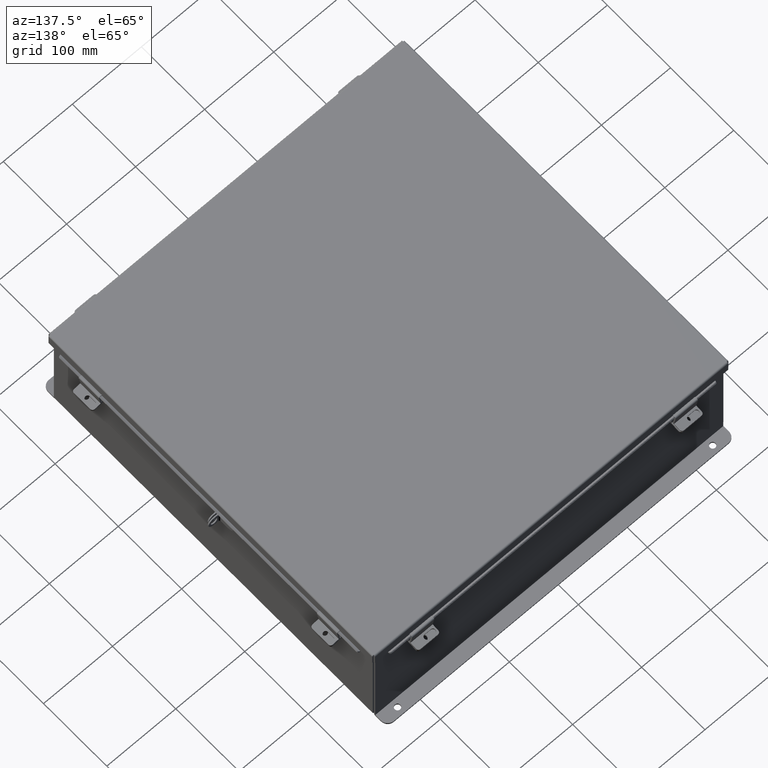
[diagram: clean part render]
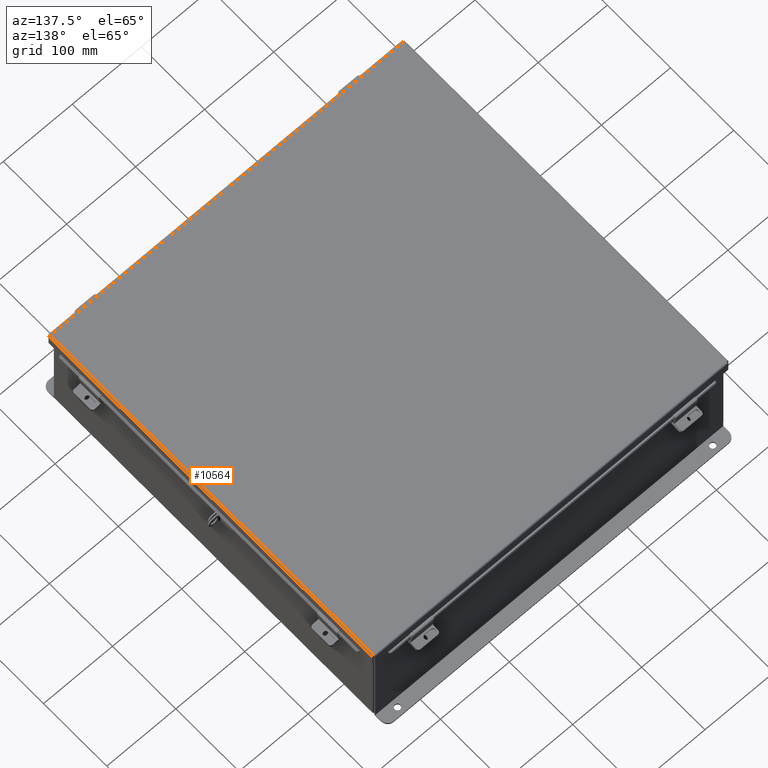
[diagram: same view with one face highlighted and labeled with its STEP entity id]
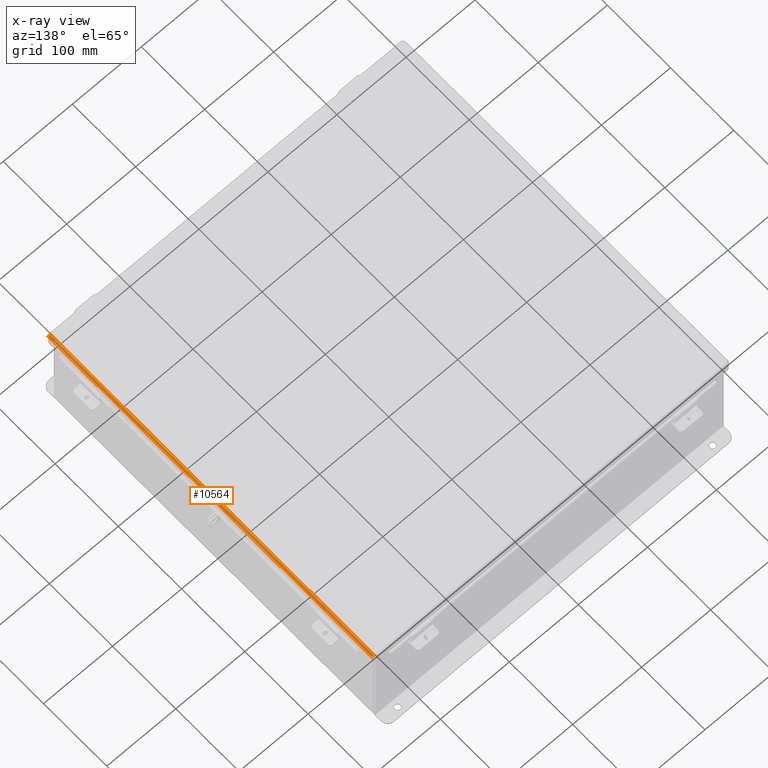
[diagram: x-ray of the same camera — body ghosted, the highlighted face saturated]
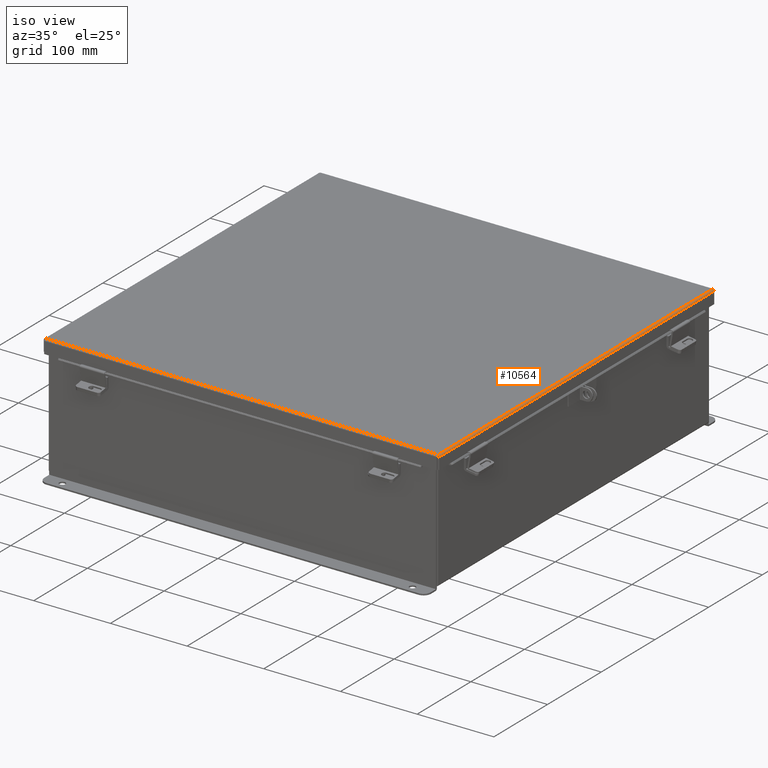
[diagram: same view with one face highlighted and labeled with its STEP entity id]
A machine part, auxiliary view. The second image highlights one B-rep face of the part: STEP entity #10564.
The next image is the same camera in x-ray: the body ghosted, the highlighted face saturated — about 0% of this face is hidden behind the body in this view.
A second angle (iso view) of the same face is appended — the face is thin or edge-on in the first view.
In plain terms, the highlighted cylindrical surface (edge-blend (fillet) strip) has radius 2.2276 mm, axis along (-0, -1, -0).
Its self-contained STEP definition (entity closure, byte-faithful):
#7 = DIRECTION ( 'NONE',  ( -1.000000000000000000, 0.0000000000000000000, -3.577373637655407700E-015 ) ) ;
#1331 = CARTESIAN_POINT ( 'NONE',  ( -10.15624999999999600, -10.07398485450580600, 0.001520096845015843000 ) ) ;
#1592 = ORIENTED_EDGE ( 'NONE', *, *, #9976, .F. ) ;
#1681 = CARTESIAN_POINT ( 'NONE',  ( -10.06854999999999700, 10.06854999999998400, -0.07470000000000015500 ) ) ;
#2680 = ORIENTED_EDGE ( 'NONE', *, *, #20362, .T. ) ;
#2768 = EDGE_CURVE ( 'NONE', #10538, #10457, #13107, .T. ) ;
#3158 = DIRECTION ( 'NONE',  ( 2.258600338820354400E-033, 1.000000000000000000, -0.0000000000000000000 ) ) ;
#3300 = LINE ( 'NONE', #21311, #16577 ) ;
#3394 = DIRECTION ( 'NONE',  ( -2.258600338820354400E-033, -1.000000000000000000, 0.0000000000000000000 ) ) ;
#3527 = CARTESIAN_POINT ( 'NONE',  ( -10.06854999999999700, -10.07447893218814800, -0.07469999999999142600 ) ) ;
#5160 = CARTESIAN_POINT ( 'NONE',  ( -10.11271738457852400, 10.07052631072936300, -0.06363106625865969100 ) ) ;
#6557 = CARTESIAN_POINT ( 'NONE',  ( -10.14518106625866200, -10.07250262145876700, -0.03116738457851925300 ) ) ;
#6931 = CARTESIAN_POINT ( 'NONE',  ( -10.13868078207831800, 10.07200854377639700, -0.04089574734179139700 ) ) ;
#7168 = CYLINDRICAL_SURFACE ( 'NONE', #8471, 0.08770000000000026400 ) ;
#8285 = CARTESIAN_POINT ( 'NONE',  ( -10.12244574734179500, -10.07102038841173900, -0.05713078207831170900 ) ) ;
#8471 = AXIS2_PLACEMENT_3D ( 'NONE', #10384, #3394, #7 ) ;
#8517 = VECTOR ( 'NONE', #3158, 39.37007874015748100 ) ;
#8615 = CARTESIAN_POINT ( 'NONE',  ( -10.15396740374381000, 10.07349077682343200, -0.009955289458300294400 ) ) ;
#9185 = DIRECTION ( 'NONE',  ( 2.258600338820354400E-033, 1.000000000000000000, -0.0000000000000000000 ) ) ;
#9976 = EDGE_CURVE ( 'NONE', #14418, #10538, #16448, .T. ) ;
#10010 = CARTESIAN_POINT ( 'NONE',  ( -10.09150528945830600, -10.06953815536470000, -0.07241740374380253900 ) ) ;
#10370 = B_SPLINE_CURVE_WITH_KNOTS ( 'NONE', 3,
 ( #1681, #12056, #15524, #5160, #17248, #6931, #18983, #8615, #20732, #10380 ),
 .UNSPECIFIED., .F., .F.,
 ( 4, 2, 2, 2, 4 ),
 ( 0.0000000000000000000, 0.2500000000000000000, 0.5000000000000000000, 0.7500000000000000000, 1.000000000000000000 ),
 .UNSPECIFIED. ) ;
#10380 = CARTESIAN_POINT ( 'NONE',  ( -10.15624999999999600, 10.07447893218811800, 0.01300000000000775700 ) ) ;
#10384 = CARTESIAN_POINT ( 'NONE',  ( -10.06854999999999700, -10.07447893218814800, 0.01300000000000885000 ) ) ;
#10457 = VERTEX_POINT ( 'NONE', #22186 ) ;
#10538 = VERTEX_POINT ( 'NONE', #18910 ) ;
#10564 = ADVANCED_FACE ( 'NONE', ( #17936 ), #7168, .T. ) ;
#11012 = CARTESIAN_POINT ( 'NONE',  ( -10.15624999999999600, -10.07447893218814800, 0.01300000000000010700 ) ) ;
#11764 = CARTESIAN_POINT ( 'NONE',  ( -10.06854999999999700, -10.06855000000001400, -0.07469999999999142600 ) ) ;
#12056 = CARTESIAN_POINT ( 'NONE',  ( -10.08002990315498900, 10.06904407768232600, -0.07469999999999124600 ) ) ;
#12925 = EDGE_CURVE ( 'NONE', #10457, #20111, #10370, .T. ) ;
#13107 = LINE ( 'NONE', #3527, #8517 ) ;
#13413 = CARTESIAN_POINT ( 'NONE',  ( -10.15624999999999600, -10.07447893218814800, 0.01300000000000010700 ) ) ;
#14418 = VERTEX_POINT ( 'NONE', #11012 ) ;
#15524 = CARTESIAN_POINT ( 'NONE',  ( -10.09150528945830800, 10.06953815536467200, -0.07241740374380253900 ) ) ;
#16448 = B_SPLINE_CURVE_WITH_KNOTS ( 'NONE', 3,
 ( #13413, #1331, #16917, #6557, #18633, #8285, #20374, #10010, #22135, #11764 ),
 .UNSPECIFIED., .F., .F.,
 ( 4, 2, 2, 2, 4 ),
 ( 0.0000000000000000000, 0.2500000000000000000, 0.5000000000000000000, 0.7500000000000000000, 1.000000000000000000 ),
 .UNSPECIFIED. ) ;
#16577 = VECTOR ( 'NONE', #9185, 39.37007874015748100 ) ;
#16917 = CARTESIAN_POINT ( 'NONE',  ( -10.15396740374381300, -10.07349077682346200, -0.009955289458300301300 ) ) ;
#17076 = CARTESIAN_POINT ( 'NONE',  ( -10.15624999999999600, 10.07447893218811800, 0.01300000000000775700 ) ) ;
#17248 = CARTESIAN_POINT ( 'NONE',  ( -10.12244574734179500, 10.07102038841170700, -0.05713078207831171600 ) ) ;
#17936 = FACE_OUTER_BOUND ( 'NONE', #20698, .T. ) ;
#18633 = CARTESIAN_POINT ( 'NONE',  ( -10.13868078207831800, -10.07200854377642500, -0.04089574734179138300 ) ) ;
#18714 = ORIENTED_EDGE ( 'NONE', *, *, #12925, .F. ) ;
#18910 = CARTESIAN_POINT ( 'NONE',  ( -10.06854999999999700, -10.06855000000001400, -0.07469999999999142600 ) ) ;
#18983 = CARTESIAN_POINT ( 'NONE',  ( -10.14518106625866700, 10.07250262145873900, -0.03116738457851926000 ) ) ;
#20111 = VERTEX_POINT ( 'NONE', #17076 ) ;
#20116 = ORIENTED_EDGE ( 'NONE', *, *, #2768, .F. ) ;
#20362 = EDGE_CURVE ( 'NONE', #14418, #20111, #3300, .T. ) ;
#20374 = CARTESIAN_POINT ( 'NONE',  ( -10.11271738457852500, -10.07052631072939300, -0.06363106625865969100 ) ) ;
#20698 = EDGE_LOOP ( 'NONE', ( #20116, #1592, #2680, #18714 ) ) ;
#20732 = CARTESIAN_POINT ( 'NONE',  ( -10.15624999999999600, 10.07398485450577200, 0.001520096845015845800 ) ) ;
#21311 = CARTESIAN_POINT ( 'NONE',  ( -10.15624999999999600, 10.15624999999998400, 0.01300000000000010700 ) ) ;
#22135 = CARTESIAN_POINT ( 'NONE',  ( -10.08002990315498900, -10.06904407768236000, -0.07469999999999126000 ) ) ;
#22186 = CARTESIAN_POINT ( 'NONE',  ( -10.06854999999999700, 10.06854999999998400, -0.07470000000000015500 ) ) ;